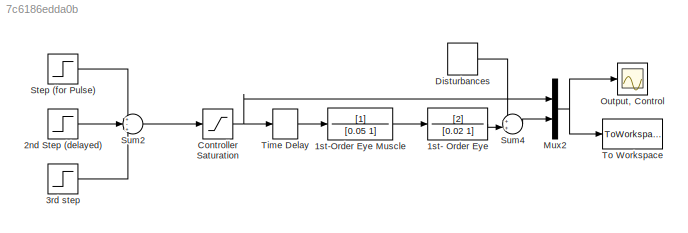
MODEL slx_7c6186edda0b
KIND model
CONFIG AbsTol = auto
CONFIG EnableMultiTasking = on
CONFIG FixedStep = .001
CONFIG MaxStep = .002
CONFIG MinStep = auto
CONFIG RelTol = 1e-3
CONFIG SampleTimeConstraint = Unconstrained
CONFIG Solver = ode3
CONFIG SolverName = ode3
CONFIG StartTime = 0.0
CONFIG StopTime = 0.2
BLOCK [TransferFcn] 1st- Order Eye 
  Denominator = [0.02 1]
  Numerator = [2]
BLOCK [TransferFcn] 1st-Order Eye Muscle
  Denominator = [0.05 1]
BLOCK [Step] 2nd Step (delayed)
  After = 0.8
  Before = 0.01
  SampleTime = 0
  Time = .03
BLOCK [Step] 3rd step 
  After = 0
  SampleTime = 0
  Time = 0.1
BLOCK [Saturate] Controller Saturation
  InputPortMap = u0
  LowerLimit = -1
  Ports = [1, 1]
  UpperLimit = 1
BLOCK [DiscretePulseGenerator] Disturbances
  Amplitude = 0
  Period = 0.3
  PhaseDelay = 0.1
  Ports = [0, 1]
  PulseType = Time based
  PulseWidth = 50
BLOCK [Mux] Mux2
  DisplayOption = bar
  Inputs = 2
  Ports = [2, 1]
BLOCK [Scope] Output, Control
  NumInputPorts = 1
  Ports = [1]
  ScopeSpecificationString = Simulink.scopes.TimeScopeBlockCfg('CurrentConfiguration', extmgr.ConfigurationSet(extmgr.Configuration('Core','General UI',true),extmgr.Configuration('Core','Source UI',true),extmgr.Configuration('Sources','WiredSimulink',true,'DataLoggingSaveFormat','StructureWithTime','DataLoggingLimitDataPoints',true,'DataLoggingDecimation','1','DataLoggingDecimateData',true),extmgr.Configuration('Visuals','Tim...<+1825ch>
BLOCK [Step] Step (for Pulse)
  Before = 0.01
  SampleTime = 0
  Time = 0.01
BLOCK [Sum] Sum2
  IconShape = round
  InputSameDT = off
  Inputs = +-+
  OutDataTypeStr = Inherit: Inherit via internal rule
  Ports = [3, 1]
  SaturateOnIntegerOverflow = off
BLOCK [Sum] Sum4
  IconShape = round
  InputSameDT = off
  Inputs = ++|
  OutDataTypeStr = Inherit: Inherit via internal rule
  Ports = [2, 1]
  SaturateOnIntegerOverflow = off
BLOCK [TransportDelay] Time Delay
  DelayTime = 0.01
  Ports = [1, 1]
BLOCK [ToWorkspace] To Workspace
  FixptAsFi = on
  MaxDataPoints = inf
  Ports = [1]
  SampleTime = -1
  Save2DSignal = 3-D array (concatenate along third dimension)
  VariableName = outp1
LINE 1st- Order Eye :1 -> Sum4:2
LINE 1st-Order Eye Muscle:1 -> 1st- Order Eye :1
LINE 2nd Step (delayed):1 -> Sum2:2
LINE 3rd step :1 -> Sum2:3
NET Controller Saturation:1 -> Mux2:1, Time Delay:1
LINE Disturbances:1 -> Sum4:1
NET Mux2:1 -> Output, Control:1, To Workspace:1
LINE Step (for Pulse):1 -> Sum2:1
LINE Sum2:1 -> Controller Saturation:1
LINE Sum4:1 -> Mux2:2
LINE Time Delay:1 -> 1st-Order Eye Muscle:1
note: NET lines group one-source signal fan-out (src -> all destinations, sorted); 1:1 wires keep LINE
